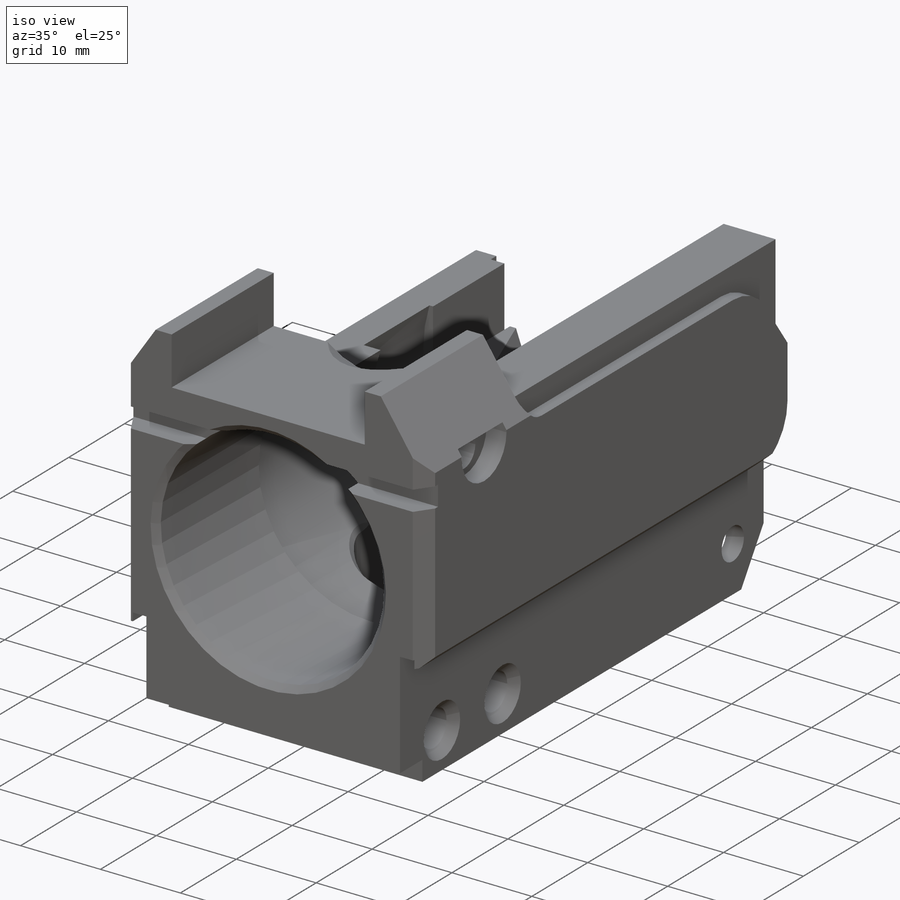
[diagram: iso view]
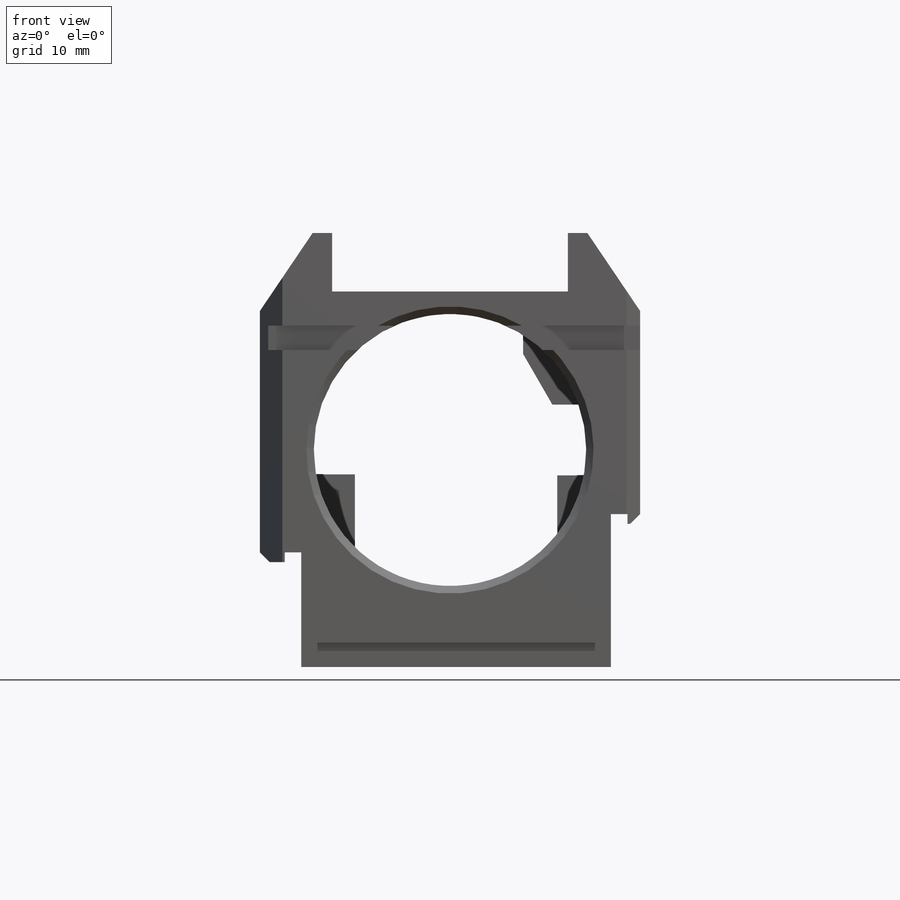
[diagram: front view]
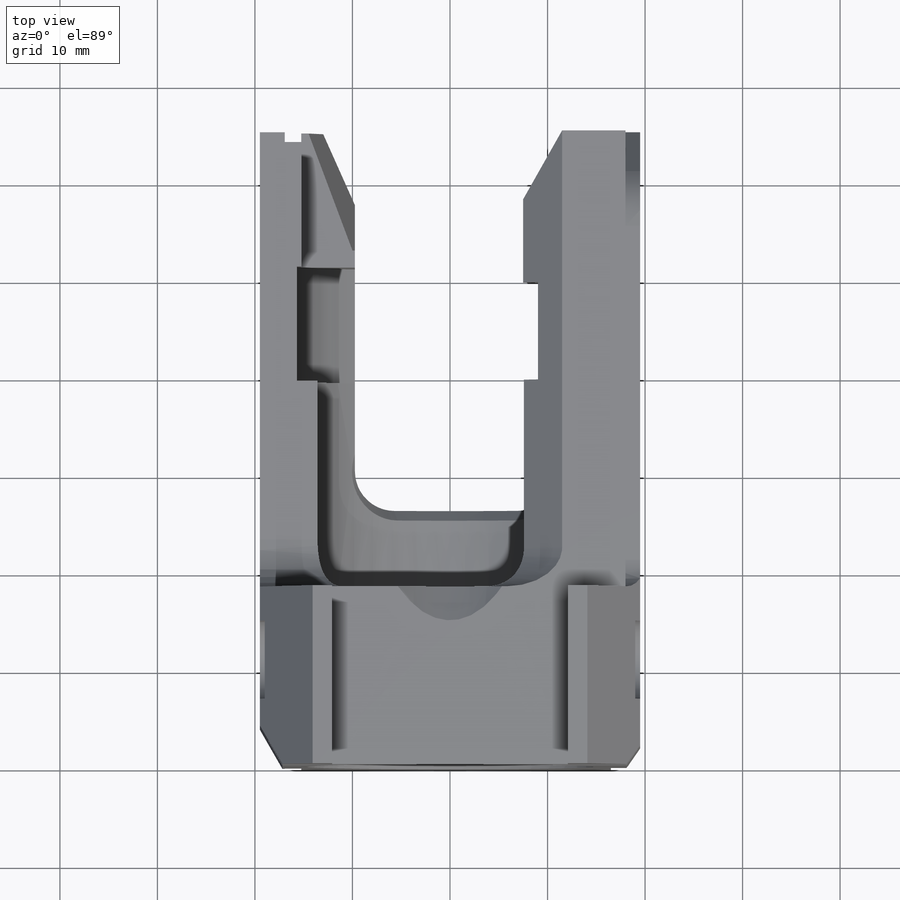
[diagram: top view]
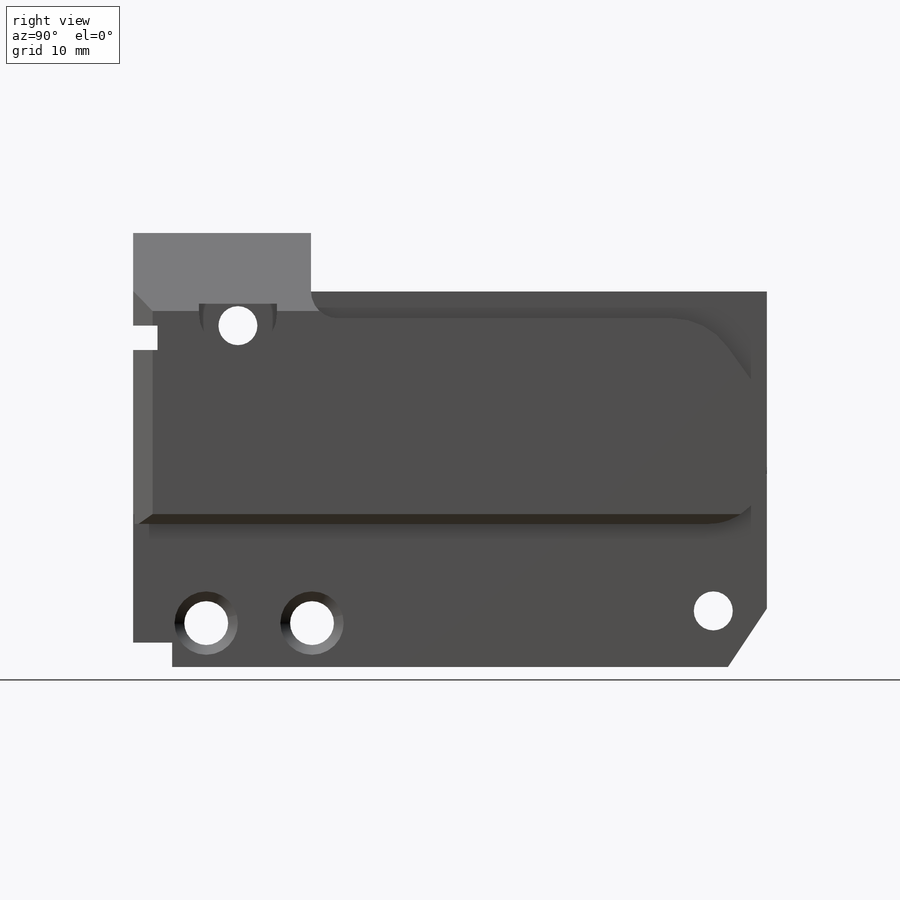
[diagram: right view]
SOLIDWORKS PART (.sldprt)
format: sldprt  version: not decoded by parser v0  size: 868,352 bytes
history: native  units: mm
features: sketch x28, cut_extrude x23, chamfer x8, fillet x4, plane x3, mirror x2, material x1, extrude x1, sweep x1, cut_revolve x1 (+16 scaffold rows collapsed)
feature tree (88):
  scaffold x16  (default folders/planes/origin — collapsed)
  material  "Material <not specified>"
  sketch  "Sketch1"  dims[D1=39.0mm D2=44.5mm]
  extrude  "Body"  Depth=65mm
  sketch  "Sketch2"  dims[D1=6.0mm D2=24.18mm D3=2.0mm D4=8.0mm]
  cut_extrude  "Extrude2"  [1 undecoded]
  sketch  "Sketch3"  dims[D1=3.5mm D2=2.5mm D3=2.5mm]
  cut_extrude  "Extrude3"  Depth=2.5mm
  sketch  "Sketch4"  dims[c1.D1=4.25mm c1.D2=10.75mm c1.D3=1.7mm c1.D4=1.0mm c1.D5=3.0mm c1.D6=14.68mm c1.D7=1.0mm c1.D8=1.0mm c2.D7=1.7mm]
  cut_extrude  "Extrude4"  [1 undecoded]
  sketch  "Sketch5"  dims[D1=2.5mm]
  cut_extrude  "Extrude5"  Depth=4mm
  sketch  "Sketch6"  dims[D1=18.25mm D2=~0.004405mm]
  cut_extrude  "Extrude6"  [1 undecoded]
  sketch  "Sketch7"  dims[D2=5.0mm D1=27.25mm]
  cut_extrude  "Extrude7"  Depth=27mm
  sketch  "Sketch8"  dims[D1=4.5mm D2=4.0mm D3=5.25mm D4=2.25mm D5=6.35mm D6=3.75mm D7=3.5mm D8=7.5mm D9=6.25mm]
  cut_extrude  "Pin_Thru_Holes"  [1 undecoded]
  chamfer  "Front_Pin_Hole_Chamfer"  Distance=1mm Angle=45deg
  sketch  "Sketch9"  dims[D2=4.0mm D1=8.0mm D3=1.0mm D4=0.75mm]
  cut_extrude  "Extrude9"  Depth=2.5mm
  mirror  "Mirror1"
  sketch  "Sketch10"  dims[D1=6.0mm D2=12.5mm D3=1.0mm D4=12.0mm]
  cut_extrude  "Extrude10"  [1 undecoded]
  sketch  "Sketch11"  dims[D1=6.0mm D2=5.5mm]
  cut_extrude  "Extrude11"  [1 undecoded]
  fillet  "Fillet1"  Radius=6mm
  sketch  "Sketch12"  dims[D1=7.0mm D2=2.75mm D3=37.0mm]
  cut_extrude  "Extrude12"  Depth=1.5mm
  fillet  "Fillet6"  Radius=2.75mm
  chamfer  "Chamfer2"  Distance=1mm Angle=45deg
  chamfer  "Chamfer3"  Distance=2mm Angle=35deg
  chamfer  "Chamfer4"  Distance=4mm Angle=30deg
  sketch  "Sketch13"  dims[D1=27.95mm]
  cut_extrude  "Barrel_Bore"  [1 undecoded]
  chamfer  "Barrel_Bore_Chamfer"  Distance=0.75mm Angle=45deg
  sketch  "Sketch14"  dims[D1=4.0mm D2=6.0mm]
  cut_extrude  "Extrude14"  [1 undecoded]
  sketch  "Sketch15"  dims[c1.D3=5.0mm c1.D1=17.75mm c1.D2=2.75mm c2.D3=2.75mm]
  cut_extrude  "Extrude15"  Depth=5mm
  fillet  "Fillet3"  Radius=5mm
  sketch  "Sketch16"  dims[D3=5.0mm D6=5.0mm D1=2.25mm D2=12.5mm D4=12.5mm D5=2.25mm]
  cut_extrude  "Extrude16"  Depth=9.5mm
  sketch  "Sketch17"  dims[D3=4.0mm D5=4.0mm D1=4.75mm D2=5.5mm D4=5.5mm]
  cut_extrude  "Extrude17"  Depth=21.9mm
  sketch  "Sketch20"  dims[D1=7.5mm]
  cut_extrude  "Extrude18"  Depth=14.25mm
  sketch  "Sketch21"  dims[D1=7.25mm]
  cut_extrude  "Extrude19"  Depth=25.25mm
  sketch  "Sketch22"  dims[D1=7.25mm]
  cut_extrude  "Extrude20"  [1 undecoded]
  sketch  "Sketch24"  dims[c1.D1=20.0mm c1.D2=0.75mm c1.D3=~5.968695mm c2.D3=70.0deg]
  sketch  "Sketch23"  dims[D1=12.0mm D2=1.0mm]
  sweep  "Cut-Sweep1"
  plane  "Plane1"
  mirror  "Mirror4"
  sketch  "Sketch25"  dims[D1=0.5mm]
  cut_extrude  "Extrude21"  Depth=31.25mm
  plane  "Plane2"  Offset=39.5mm
  sketch  "Sketch26"  dims[D1=2.0mm]
  cut_extrude  "Extrude22"  [1 undecoded]
  sketch  "Sketch27"
  cut_extrude  "Extrude23"  Depth=1.75mm
  chamfer  "Chamfer9"  Distance=1mm Angle=45deg
  chamfer  "Chamfer10"  Distance=4mm
  chamfer  "Chamfer11"  Distance=3mm Angle=60deg
  sketch  "Sketch29"  dims[D1=3.5mm D2=4.0mm]
  fillet  "Fillet5"  Radius=4mm
  plane  "Plane3"
  sketch  "Sketch32"  dims[D1=4.0mm]
  cut_extrude  "Extrude24"  Depth=10mm
  sketch  "Sketch31"  dims[c1.D1=~13.435362mm c2.D1=60.0deg c2.D2=1.75mm c2.D3=9.0mm c2.D4=5.0mm]
  cut_revolve  "Cut-Revolve1"  Angle=360deg
decode coverage: 54 of 68 modeling features carry decoded parameters
note: ~ marks probable driven/reference dimensions
note: 10 parameter values undecoded
summary: no parameter record found for 10 features
note: suppression state not decoded; provenance and decode notes live in map.json
